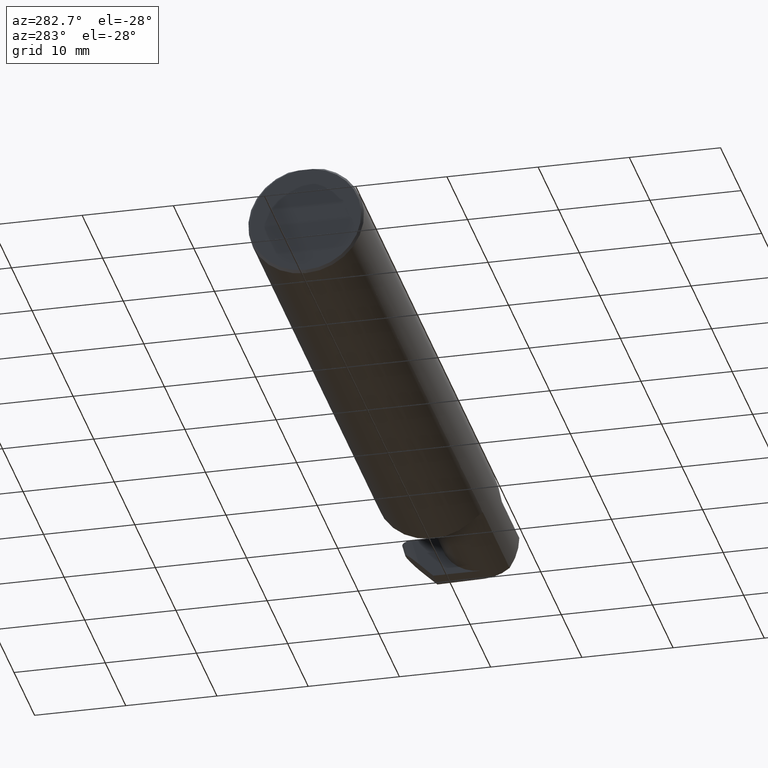
[diagram: clean part render]
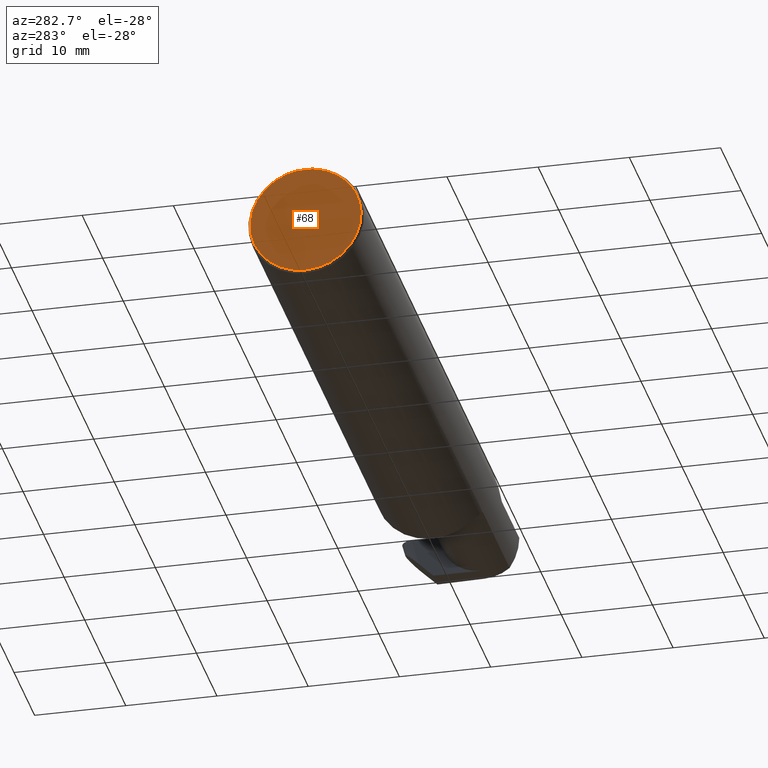
[diagram: same view with one face highlighted and labeled with its STEP entity id]
A machine part, auxiliary view. The second image highlights one B-rep face of the part: STEP entity #68.
In plain terms, the highlighted planar face has unit normal (1, 0, 0).
Its self-contained STEP definition (entity closure, byte-faithful):
#33 = EDGE_CURVE ( 'NONE', #127, #99, #490, .T. ) ;
#51 = VERTEX_POINT ( 'NONE', #181 ) ;
#68 = ADVANCED_FACE ( 'NONE', ( #515 ), #572, .F. ) ;
#78 = AXIS2_PLACEMENT_3D ( 'NONE', #90, #557, #117 ) ;
#83 = ORIENTED_EDGE ( 'NONE', *, *, #359, .T. ) ;
#88 = CARTESIAN_POINT ( 'NONE',  ( 0.000000000000000000, 0.000000000000000000, 0.000000000000000000 ) ) ;
#90 = CARTESIAN_POINT ( 'NONE',  ( 0.000000000000000000, 0.000000000000000000, 0.000000000000000000 ) ) ;
#99 = VERTEX_POINT ( 'NONE', #772 ) ;
#117 = DIRECTION ( 'NONE',  ( 0.000000000000000000, 0.000000000000000000, -1.000000000000000000 ) ) ;
#127 = VERTEX_POINT ( 'NONE', #583 ) ;
#181 = CARTESIAN_POINT ( 'NONE',  ( 0.000000000000000000, 0.000000000000000000, -0.2398500000000001742 ) ) ;
#240 = EDGE_LOOP ( 'NONE', ( #698, #648, #83 ) ) ;
#281 = AXIS2_PLACEMENT_3D ( 'NONE', #362, #620, #291 ) ;
#291 = DIRECTION ( 'NONE',  ( 0.000000000000000000, 0.000000000000000000, -1.000000000000000000 ) ) ;
#357 = DIRECTION ( 'NONE',  ( -1.000000000000000000, -0.000000000000000000, -0.000000000000000000 ) ) ;
#359 = EDGE_CURVE ( 'NONE', #51, #127, #453, .T. ) ;
#362 = CARTESIAN_POINT ( 'NONE',  ( 0.000000000000000000, 0.000000000000000000, 0.000000000000000000 ) ) ;
#378 = DIRECTION ( 'NONE',  ( -0.000000000000000000, 1.000000000000000000, -0.000000000000000000 ) ) ;
#453 = CIRCLE ( 'NONE', #670, 0.2398500000000001742 ) ;
#490 = LINE ( 'NONE', #701, #506 ) ;
#506 = VECTOR ( 'NONE', #378, 39.37007874015748143 ) ;
#515 = FACE_OUTER_BOUND ( 'NONE', #240, .T. ) ;
#557 = DIRECTION ( 'NONE',  ( 1.000000000000000000, 0.000000000000000000, 0.000000000000000000 ) ) ;
#559 = CIRCLE ( 'NONE', #281, 0.2398500000000001742 ) ;
#572 = PLANE ( 'NONE',  #78 ) ;
#583 = CARTESIAN_POINT ( 'NONE',  ( 0.000000000000000000, -0.03090954545120560767, 0.2378499999999998671 ) ) ;
#616 = DIRECTION ( 'NONE',  ( 0.000000000000000000, 0.000000000000000000, -1.000000000000000000 ) ) ;
#620 = DIRECTION ( 'NONE',  ( -1.000000000000000000, -0.000000000000000000, -0.000000000000000000 ) ) ;
#648 = ORIENTED_EDGE ( 'NONE', *, *, #793, .T. ) ;
#670 = AXIS2_PLACEMENT_3D ( 'NONE', #88, #357, #616 ) ;
#698 = ORIENTED_EDGE ( 'NONE', *, *, #33, .T. ) ;
#701 = CARTESIAN_POINT ( 'NONE',  ( 0.000000000000000000, 0.2498499999999998500, 0.2378499999999998671 ) ) ;
#772 = CARTESIAN_POINT ( 'NONE',  ( 0.000000000000000000, 0.03090954545120574992, 0.2378499999999998671 ) ) ;
#793 = EDGE_CURVE ( 'NONE', #99, #51, #559, .T. ) ;